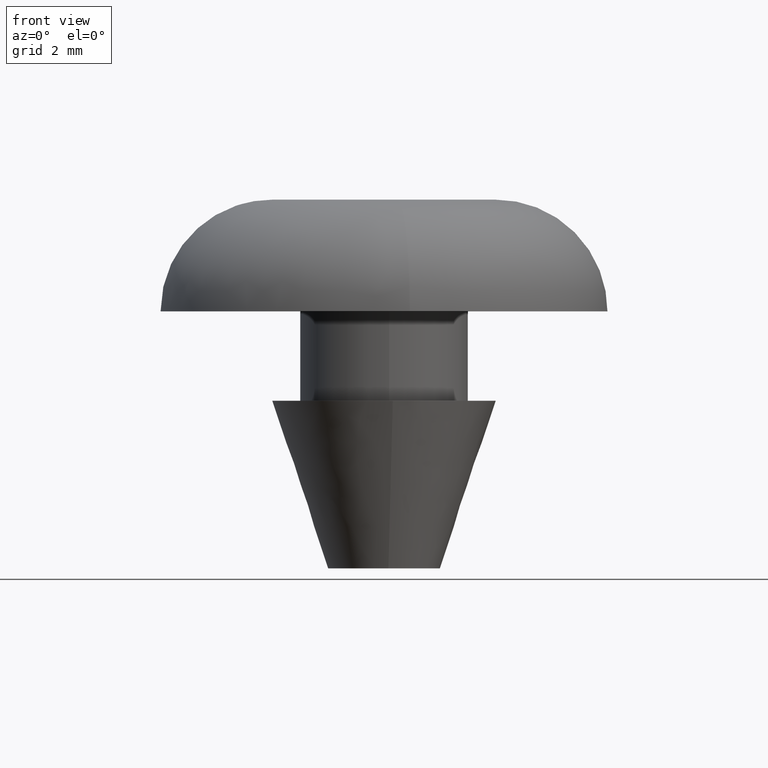
[diagram: clean part render]
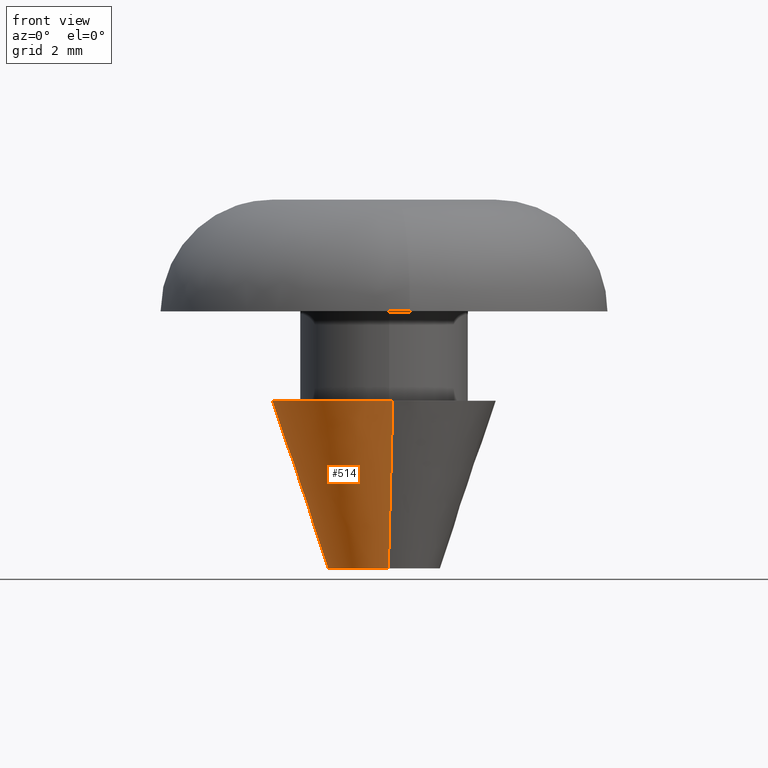
[diagram: same view with one face highlighted and labeled with its STEP entity id]
A machine part, front view. The second image highlights one B-rep face of the part: STEP entity #514.
In plain terms, the highlighted face is a freeform B-spline surface patch.
Its self-contained STEP definition (entity closure, byte-faithful):
#416=CARTESIAN_POINT('',(-0.076497618334649,0.971994400389800,-0.075000000000000));
#417=CARTESIAN_POINT('',(-1.048492018724449,0.895496782055150,-0.075000000000000));
#418=CARTESIAN_POINT('',(-0.971994400389800,-0.076497618334649,-0.075000000000000));
#419=CARTESIAN_POINT('',(-0.895496782055150,-1.048492018724449,-0.075000000000000));
#420=CARTESIAN_POINT('',(0.076497618334649,-0.971994400389800,-0.075000000000000));
#421=CARTESIAN_POINT('',(-0.158928705783717,2.019380674143162,3.076875000000001));
#422=CARTESIAN_POINT('',(-2.178309379926879,1.860451968359445,3.076875000000000));
#423=CARTESIAN_POINT('',(-2.019380674143162,-0.158928705783717,3.076875000000001));
#424=CARTESIAN_POINT('',(-1.860451968359445,-2.178309379926879,3.076875000000000));
#425=CARTESIAN_POINT('',(0.158928705783717,-2.019380674143162,3.076875000000001));
#433=(BOUNDED_SURFACE()B_SPLINE_SURFACE(2,1,((#416,#421),(#417,#422),(#418,#423),(#419,#424),(#420,#425)),.UNSPECIFIED.,.F.,.F.,.U.)B_SPLINE_SURFACE_WITH_KNOTS((3,2,3),(2,2),(0.0,3.356165389127995,6.712330778255989),(0.0,3.322367966714403),.UNSPECIFIED.)GEOMETRIC_REPRESENTATION_ITEM()RATIONAL_B_SPLINE_SURFACE(((1.0,1.0),(0.707106781186548,0.707106781186548),(1.0,1.0),(0.707106781186548,0.707106781186548),(1.0,1.0)))REPRESENTATION_ITEM('')SURFACE());
#434=CARTESIAN_POINT('',(-1.0,0.0,0.0));
#435=VERTEX_POINT('',#434);
#436=CARTESIAN_POINT('',(-0.078457802611758,0.996917092227118,-0.000001026649899));
#437=VERTEX_POINT('',#436);
#438=CARTESIAN_POINT('',(-1.0,0.0,0.0));
#439=CARTESIAN_POINT('',(-0.999999986575181,0.924391498852421,-0.000000513324950));
#440=CARTESIAN_POINT('',(-0.078457802611758,0.996917092227118,-0.000001026649899));
#448=(BOUNDED_CURVE()B_SPLINE_CURVE(2,(#438,#439,#440),.UNSPECIFIED.,.F.,.U.)B_SPLINE_CURVE_WITH_KNOTS((3,3),(0.0,0.236331518373108),.UNSPECIFIED.)CURVE()GEOMETRIC_REPRESENTATION_ITEM()RATIONAL_B_SPLINE_CURVE((1.0,0.723120403506519,0.969723810579741))REPRESENTATION_ITEM(''));
#449=EDGE_CURVE('',#435,#437,#448,.T.);
#450=ORIENTED_EDGE('',*,*,#449,.F.);
#451=CARTESIAN_POINT('',(0.078457802611758,-0.996917092227118,-0.000001026649899));
#452=VERTEX_POINT('',#451);
#453=CARTESIAN_POINT('',(0.078457802611758,-0.996917092227118,-0.000001026649899));
#454=CARTESIAN_POINT('',(0.039289444574258,-0.999999665032785,-0.000001008006522));
#455=CARTESIAN_POINT('',(-0.000000025834610,-0.999999671734833,-0.000000987838257));
#456=CARTESIAN_POINT('',(-1.000000012409791,-0.999999842316099,-0.000000474513307));
#457=CARTESIAN_POINT('',(-1.0,0.0,0.0));
#465=(BOUNDED_CURVE()B_SPLINE_CURVE(2,(#453,#454,#455,#456,#457),.UNSPECIFIED.,.F.,.U.)B_SPLINE_CURVE_WITH_KNOTS((3,2,3),(0.736331518373108,0.750000000000000,1.0),.UNSPECIFIED.)CURVE()GEOMETRIC_REPRESENTATION_ITEM()RATIONAL_B_SPLINE_CURVE((0.969723810579741,0.983986377680029,1.0,0.707106781186548,1.0))REPRESENTATION_ITEM(''));
#466=EDGE_CURVE('',#452,#435,#465,.T.);
#467=ORIENTED_EDGE('',*,*,#466,.F.);
#468=CARTESIAN_POINT('',(0.156917268877353,-1.993834493201659,2.999999261665062));
#469=VERTEX_POINT('',#468);
#470=CARTESIAN_POINT('',(0.078457802611758,-0.996917092227118,-0.000001026649899));
#471=CARTESIAN_POINT('',(0.156917268877353,-1.993834493201659,2.999999261665062));
#472=QUASI_UNIFORM_CURVE('',1,(#470,#471),.UNSPECIFIED.,.F.,.U.);
#473=EDGE_CURVE('',#452,#469,#472,.T.);
#474=ORIENTED_EDGE('',*,*,#473,.T.);
#475=CARTESIAN_POINT('',(-2.0,0.0,3.0));
#476=VERTEX_POINT('',#475);
#477=CARTESIAN_POINT('',(0.156917268877353,-1.993834493201660,2.999999261665062));
#478=CARTESIAN_POINT('',(0.078579760285092,-2.000000000000000,3.000000000000000));
#479=CARTESIAN_POINT('',(0.0,-2.0,3.0));
#480=CARTESIAN_POINT('',(-2.000000000000000,-2.000000000000000,3.0));
#481=CARTESIAN_POINT('',(-2.0,0.0,3.0));
#489=(BOUNDED_CURVE()B_SPLINE_CURVE(2,(#477,#478,#479,#480,#481),.UNSPECIFIED.,.F.,.U.)B_SPLINE_CURVE_WITH_KNOTS((3,2,3),(0.736331378293365,0.750000000000000,1.0),.UNSPECIFIED.)CURVE()GEOMETRIC_REPRESENTATION_ITEM()RATIONAL_B_SPLINE_CURVE((0.969723518243615,0.983986213566401,1.0,0.707106781186548,1.0))REPRESENTATION_ITEM(''));
#490=EDGE_CURVE('',#469,#476,#489,.T.);
#491=ORIENTED_EDGE('',*,*,#490,.T.);
#492=CARTESIAN_POINT('',(-0.156917268877353,1.993834493201659,2.999999261665062));
#493=VERTEX_POINT('',#492);
#494=CARTESIAN_POINT('',(-2.0,0.0,3.0));
#495=CARTESIAN_POINT('',(-2.000000000000000,1.848781823461392,3.000000000000000));
#496=CARTESIAN_POINT('',(-0.156917268877353,1.993834493201660,2.999999261665062));
#504=(BOUNDED_CURVE()B_SPLINE_CURVE(2,(#494,#495,#496),.UNSPECIFIED.,.F.,.U.)B_SPLINE_CURVE_WITH_KNOTS((3,3),(0.0,0.236331378293365),.UNSPECIFIED.)CURVE()GEOMETRIC_REPRESENTATION_ITEM()RATIONAL_B_SPLINE_CURVE((1.0,0.723120567620147,0.969723518243615))REPRESENTATION_ITEM(''));
#505=EDGE_CURVE('',#476,#493,#504,.T.);
#506=ORIENTED_EDGE('',*,*,#505,.T.);
#507=CARTESIAN_POINT('',(-0.078457802611758,0.996917092227118,-0.000001026649899));
#508=CARTESIAN_POINT('',(-0.156917268877353,1.993834493201659,2.999999261665062));
#509=QUASI_UNIFORM_CURVE('',1,(#507,#508),.UNSPECIFIED.,.F.,.U.);
#510=EDGE_CURVE('',#437,#493,#509,.T.);
#511=ORIENTED_EDGE('',*,*,#510,.F.);
#512=EDGE_LOOP('',(#450,#467,#474,#491,#506,#511));
#513=FACE_OUTER_BOUND('',#512,.T.);
#514=ADVANCED_FACE('',(#513),#433,.T.);